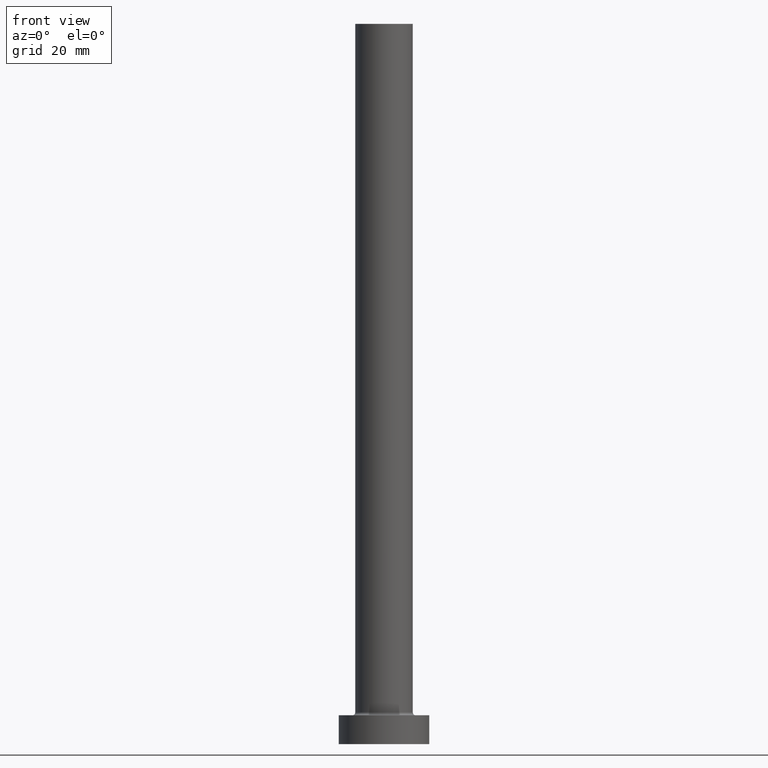
[diagram: clean part render]
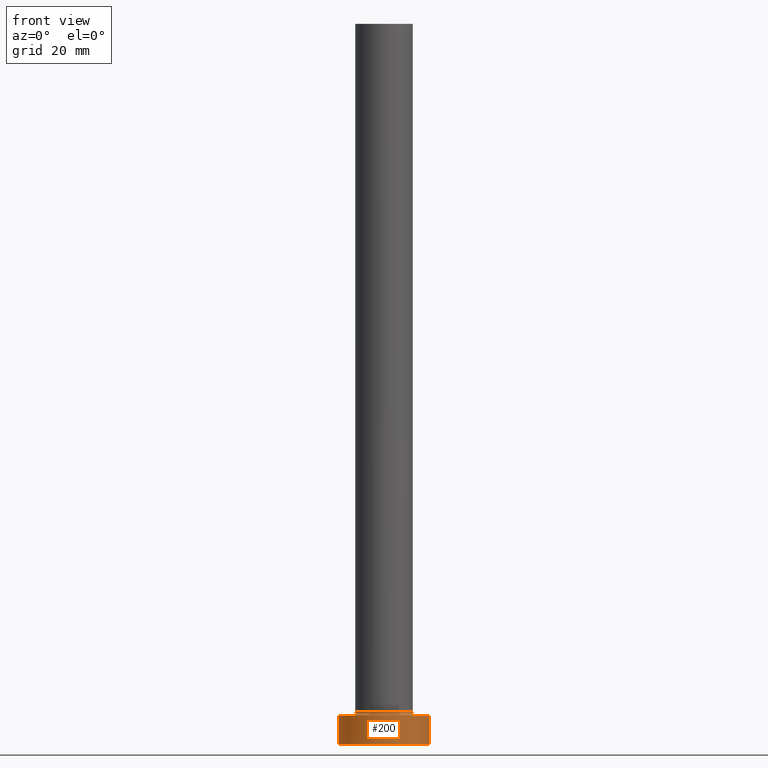
[diagram: same view with one face highlighted and labeled with its STEP entity id]
A machine part, front view. The second image highlights one B-rep face of the part: STEP entity #200.
In plain terms, the highlighted cylindrical surface (partial cylindrical patch) has radius 11 mm, axis along (-0, -0, -1).
Its self-contained STEP definition (entity closure, byte-faithful):
#6 = VECTOR ( 'NONE', #121, 1000.000000000000000 ) ;
#9 = CARTESIAN_POINT ( 'NONE',  ( 11.00000000000000000, 1.347111479062088405E-15, 7.000000000000000000 ) ) ;
#17 = DIRECTION ( 'NONE',  ( -0.000000000000000000, -0.000000000000000000, -1.000000000000000000 ) ) ;
#38 = DIRECTION ( 'NONE',  ( 0.000000000000000000, 0.000000000000000000, 1.000000000000000000 ) ) ;
#56 = CIRCLE ( 'NONE', #143, 11.00000000000000000 ) ;
#64 = EDGE_LOOP ( 'NONE', ( #436, #261, #234, #286 ) ) ;
#71 = CARTESIAN_POINT ( 'NONE',  ( 0.000000000000000000, 0.000000000000000000, 0.000000000000000000 ) ) ;
#101 = CARTESIAN_POINT ( 'NONE',  ( 11.00000000000000000, 1.347111479062088405E-15, 0.000000000000000000 ) ) ;
#116 = DIRECTION ( 'NONE',  ( 0.000000000000000000, 0.000000000000000000, 1.000000000000000000 ) ) ;
#121 = DIRECTION ( 'NONE',  ( -0.000000000000000000, -0.000000000000000000, -1.000000000000000000 ) ) ;
#125 = CARTESIAN_POINT ( 'NONE',  ( 0.000000000000000000, 0.000000000000000000, 7.000000000000000000 ) ) ;
#143 = AXIS2_PLACEMENT_3D ( 'NONE', #313, #116, #290 ) ;
#148 = DIRECTION ( 'NONE',  ( -1.000000000000000000, 0.000000000000000000, 0.000000000000000000 ) ) ;
#162 = CARTESIAN_POINT ( 'NONE',  ( -11.00000000000000000, 0.000000000000000000, 7.000000000000000000 ) ) ;
#166 = DIRECTION ( 'NONE',  ( 1.000000000000000000, 0.000000000000000000, 0.000000000000000000 ) ) ;
#194 = LINE ( 'NONE', #162, #396 ) ;
#200 = ADVANCED_FACE ( 'NONE', ( #294 ), #251, .T. ) ;
#209 = AXIS2_PLACEMENT_3D ( 'NONE', #71, #38, #166 ) ;
#218 = DIRECTION ( 'NONE',  ( -0.000000000000000000, -0.000000000000000000, -1.000000000000000000 ) ) ;
#234 = ORIENTED_EDGE ( 'NONE', *, *, #263, .T. ) ;
#247 = CARTESIAN_POINT ( 'NONE',  ( 11.00000000000000000, 1.347111479062088405E-15, 7.000000000000000000 ) ) ;
#251 = CYLINDRICAL_SURFACE ( 'NONE', #367, 11.00000000000000000 ) ;
#255 = VERTEX_POINT ( 'NONE', #260 ) ;
#260 = CARTESIAN_POINT ( 'NONE',  ( -11.00000000000000000, 0.000000000000000000, 7.000000000000000000 ) ) ;
#261 = ORIENTED_EDGE ( 'NONE', *, *, #359, .F. ) ;
#263 = EDGE_CURVE ( 'NONE', #255, #345, #194, .T. ) ;
#264 = VERTEX_POINT ( 'NONE', #101 ) ;
#286 = ORIENTED_EDGE ( 'NONE', *, *, #314, .T. ) ;
#290 = DIRECTION ( 'NONE',  ( 1.000000000000000000, 0.000000000000000000, 0.000000000000000000 ) ) ;
#294 = FACE_OUTER_BOUND ( 'NONE', #64, .T. ) ;
#313 = CARTESIAN_POINT ( 'NONE',  ( 0.000000000000000000, 0.000000000000000000, 7.000000000000000000 ) ) ;
#314 = EDGE_CURVE ( 'NONE', #345, #264, #343, .T. ) ;
#343 = CIRCLE ( 'NONE', #209, 11.00000000000000000 ) ;
#345 = VERTEX_POINT ( 'NONE', #381 ) ;
#359 = EDGE_CURVE ( 'NONE', #255, #387, #56, .T. ) ;
#365 = EDGE_CURVE ( 'NONE', #387, #264, #432, .T. ) ;
#367 = AXIS2_PLACEMENT_3D ( 'NONE', #125, #17, #148 ) ;
#381 = CARTESIAN_POINT ( 'NONE',  ( -11.00000000000000000, 0.000000000000000000, 0.000000000000000000 ) ) ;
#387 = VERTEX_POINT ( 'NONE', #247 ) ;
#396 = VECTOR ( 'NONE', #218, 1000.000000000000000 ) ;
#432 = LINE ( 'NONE', #9, #6 ) ;
#436 = ORIENTED_EDGE ( 'NONE', *, *, #365, .F. ) ;